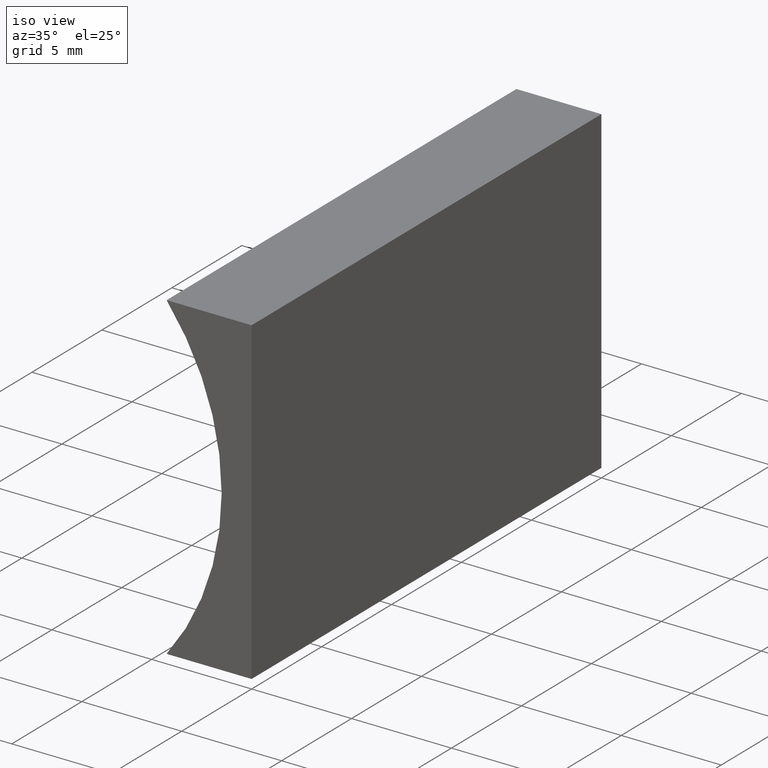
[diagram: clean part render]
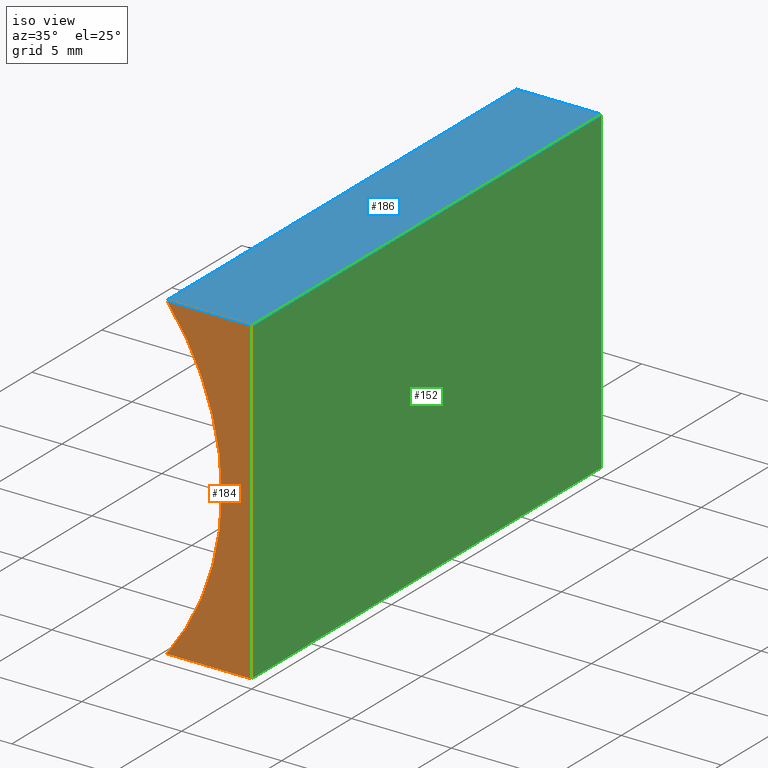
[diagram: same view with three faces highlighted in distinct colors, each labeled with its STEP entity id]
A machine part, iso view with three faces highlighted in distinct colors.
Their STEP definitions:

[orange] entity #184 — the highlighted planar face has unit normal (0, 1, 0).
#2 = CARTESIAN_POINT ( 'NONE',  ( -14.49999999999999800, 0.0000000000000000000, 8.000000000000003600 ) ) ;
#3 = VECTOR ( 'NONE', #71, 1000.000000000000000 ) ;
#4 = EDGE_CURVE ( 'NONE', #16, #123, #56, .T. ) ;
#7 = CARTESIAN_POINT ( 'NONE',  ( 9.797174393178825700E-016, 0.0000000000000000000, 16.00000000000000000 ) ) ;
#8 = ORIENTED_EDGE ( 'NONE', *, *, #90, .F. ) ;
#15 = FACE_OUTER_BOUND ( 'NONE', #159, .T. ) ;
#16 = VERTEX_POINT ( 'NONE', #134 ) ;
#17 = CARTESIAN_POINT ( 'NONE',  ( -4.253049234040399400, 0.0000000000000000000, 16.00000000000000000 ) ) ;
#26 = CARTESIAN_POINT ( 'NONE',  ( 0.0000000000000000000, 0.0000000000000000000, 0.0000000000000000000 ) ) ;
#30 = DIRECTION ( 'NONE',  ( 0.0000000000000000000, 1.000000000000000000, 0.0000000000000000000 ) ) ;
#32 = LINE ( 'NONE', #148, #67 ) ;
#42 = LINE ( 'NONE', #178, #3 ) ;
#44 = EDGE_CURVE ( 'NONE', #187, #204, #32, .T. ) ;
#56 = CIRCLE ( 'NONE', #202, 13.00000000000000200 ) ;
#61 = DIRECTION ( 'NONE',  ( -0.0000000000000000000, -1.000000000000000000, -0.0000000000000000000 ) ) ;
#67 = VECTOR ( 'NONE', #116, 1000.000000000000000 ) ;
#70 = CARTESIAN_POINT ( 'NONE',  ( -14.49999999999999800, 0.0000000000000000000, 8.000000000000003600 ) ) ;
#71 = DIRECTION ( 'NONE',  ( -1.000000000000000000, 0.0000000000000000000, 0.0000000000000000000 ) ) ;
#74 = ORIENTED_EDGE ( 'NONE', *, *, #80, .F. ) ;
#78 = AXIS2_PLACEMENT_3D ( 'NONE', #70, #30, #119 ) ;
#80 = EDGE_CURVE ( 'NONE', #123, #187, #147, .T. ) ;
#81 = ORIENTED_EDGE ( 'NONE', *, *, #4, .F. ) ;
#90 = EDGE_CURVE ( 'NONE', #204, #16, #42, .T. ) ;
#116 = DIRECTION ( 'NONE',  ( -6.123233995736766000E-017, -0.0000000000000000000, -1.000000000000000000 ) ) ;
#117 = VECTOR ( 'NONE', #174, 1000.000000000000000 ) ;
#119 = DIRECTION ( 'NONE',  ( 0.0000000000000000000, -0.0000000000000000000, 1.000000000000000000 ) ) ;
#123 = VERTEX_POINT ( 'NONE', #17 ) ;
#125 = DIRECTION ( 'NONE',  ( 0.0000000000000000000, 0.0000000000000000000, 1.000000000000000000 ) ) ;
#134 = CARTESIAN_POINT ( 'NONE',  ( -4.253049234040400300, 0.0000000000000000000, 1.734723475976807100E-015 ) ) ;
#147 = LINE ( 'NONE', #181, #117 ) ;
#148 = CARTESIAN_POINT ( 'NONE',  ( 0.0000000000000000000, 0.0000000000000000000, 0.0000000000000000000 ) ) ;
#154 = PLANE ( 'NONE',  #78 ) ;
#159 = EDGE_LOOP ( 'NONE', ( #8, #188, #74, #81 ) ) ;
#174 = DIRECTION ( 'NONE',  ( 1.000000000000000000, -0.0000000000000000000, -0.0000000000000000000 ) ) ;
#178 = CARTESIAN_POINT ( 'NONE',  ( 0.0000000000000000000, 0.0000000000000000000, 0.0000000000000000000 ) ) ;
#181 = CARTESIAN_POINT ( 'NONE',  ( 9.797174393178825700E-016, 0.0000000000000000000, 16.00000000000000000 ) ) ;
#184 = ADVANCED_FACE ( 'NONE', ( #15 ), #154, .F. ) ;
#187 = VERTEX_POINT ( 'NONE', #7 ) ;
#188 = ORIENTED_EDGE ( 'NONE', *, *, #44, .F. ) ;
#202 = AXIS2_PLACEMENT_3D ( 'NONE', #2, #61, #125 ) ;
#204 = VERTEX_POINT ( 'NONE', #26 ) ;

[blue] entity #186 — the highlighted planar face has unit normal (0, 0, -1).
#7 = CARTESIAN_POINT ( 'NONE',  ( 9.797174393178825700E-016, 0.0000000000000000000, 16.00000000000000000 ) ) ;
#17 = CARTESIAN_POINT ( 'NONE',  ( -4.253049234040399400, 0.0000000000000000000, 16.00000000000000000 ) ) ;
#22 = VECTOR ( 'NONE', #91, 1000.000000000000000 ) ;
#25 = CARTESIAN_POINT ( 'NONE',  ( 9.797174393178825700E-016, 25.00000000000000000, 16.00000000000000000 ) ) ;
#27 = CARTESIAN_POINT ( 'NONE',  ( -4.253049234040399400, 25.00000000000000000, 16.00000000000000000 ) ) ;
#34 = ORIENTED_EDGE ( 'NONE', *, *, #122, .F. ) ;
#36 = VERTEX_POINT ( 'NONE', #88 ) ;
#45 = PLANE ( 'NONE',  #73 ) ;
#46 = EDGE_CURVE ( 'NONE', #155, #36, #108, .T. ) ;
#54 = CARTESIAN_POINT ( 'NONE',  ( 9.797174393178825700E-016, 25.00000000000000000, 16.00000000000000000 ) ) ;
#63 = EDGE_LOOP ( 'NONE', ( #77, #34, #86, #193 ) ) ;
#73 = AXIS2_PLACEMENT_3D ( 'NONE', #25, #149, #167 ) ;
#77 = ORIENTED_EDGE ( 'NONE', *, *, #80, .T. ) ;
#80 = EDGE_CURVE ( 'NONE', #123, #187, #147, .T. ) ;
#86 = ORIENTED_EDGE ( 'NONE', *, *, #46, .F. ) ;
#88 = CARTESIAN_POINT ( 'NONE',  ( 9.797174393178825700E-016, 25.00000000000000000, 16.00000000000000000 ) ) ;
#91 = DIRECTION ( 'NONE',  ( -0.0000000000000000000, -1.000000000000000000, -0.0000000000000000000 ) ) ;
#95 = VECTOR ( 'NONE', #110, 1000.000000000000000 ) ;
#99 = VECTOR ( 'NONE', #164, 1000.000000000000000 ) ;
#108 = LINE ( 'NONE', #160, #99 ) ;
#110 = DIRECTION ( 'NONE',  ( -0.0000000000000000000, -1.000000000000000000, -0.0000000000000000000 ) ) ;
#112 = FACE_OUTER_BOUND ( 'NONE', #63, .T. ) ;
#117 = VECTOR ( 'NONE', #174, 1000.000000000000000 ) ;
#122 = EDGE_CURVE ( 'NONE', #36, #187, #129, .T. ) ;
#123 = VERTEX_POINT ( 'NONE', #17 ) ;
#128 = CARTESIAN_POINT ( 'NONE',  ( -4.253049234040399400, 25.00000000000000000, 16.00000000000000000 ) ) ;
#129 = LINE ( 'NONE', #54, #95 ) ;
#143 = LINE ( 'NONE', #27, #22 ) ;
#147 = LINE ( 'NONE', #181, #117 ) ;
#149 = DIRECTION ( 'NONE',  ( 0.0000000000000000000, 0.0000000000000000000, -1.000000000000000000 ) ) ;
#155 = VERTEX_POINT ( 'NONE', #128 ) ;
#160 = CARTESIAN_POINT ( 'NONE',  ( 9.797174393178825700E-016, 25.00000000000000000, 16.00000000000000000 ) ) ;
#164 = DIRECTION ( 'NONE',  ( 1.000000000000000000, -0.0000000000000000000, -0.0000000000000000000 ) ) ;
#167 = DIRECTION ( 'NONE',  ( -1.000000000000000000, 0.0000000000000000000, -0.0000000000000000000 ) ) ;
#174 = DIRECTION ( 'NONE',  ( 1.000000000000000000, -0.0000000000000000000, -0.0000000000000000000 ) ) ;
#181 = CARTESIAN_POINT ( 'NONE',  ( 9.797174393178825700E-016, 0.0000000000000000000, 16.00000000000000000 ) ) ;
#182 = EDGE_CURVE ( 'NONE', #155, #123, #143, .T. ) ;
#186 = ADVANCED_FACE ( 'NONE', ( #112 ), #45, .F. ) ;
#187 = VERTEX_POINT ( 'NONE', #7 ) ;
#193 = ORIENTED_EDGE ( 'NONE', *, *, #182, .T. ) ;

[green] entity #152 — the highlighted planar face has unit normal (-1, 0, 0).
#5 = EDGE_LOOP ( 'NONE', ( #121, #113, #126, #68 ) ) ;
#7 = CARTESIAN_POINT ( 'NONE',  ( 9.797174393178825700E-016, 0.0000000000000000000, 16.00000000000000000 ) ) ;
#9 = VERTEX_POINT ( 'NONE', #13 ) ;
#10 = VECTOR ( 'NONE', #101, 1000.000000000000000 ) ;
#13 = CARTESIAN_POINT ( 'NONE',  ( 0.0000000000000000000, 25.00000000000000000, 0.0000000000000000000 ) ) ;
#26 = CARTESIAN_POINT ( 'NONE',  ( 0.0000000000000000000, 0.0000000000000000000, 0.0000000000000000000 ) ) ;
#32 = LINE ( 'NONE', #148, #67 ) ;
#36 = VERTEX_POINT ( 'NONE', #88 ) ;
#44 = EDGE_CURVE ( 'NONE', #187, #204, #32, .T. ) ;
#53 = LINE ( 'NONE', #176, #150 ) ;
#54 = CARTESIAN_POINT ( 'NONE',  ( 9.797174393178825700E-016, 25.00000000000000000, 16.00000000000000000 ) ) ;
#66 = LINE ( 'NONE', #144, #10 ) ;
#67 = VECTOR ( 'NONE', #116, 1000.000000000000000 ) ;
#68 = ORIENTED_EDGE ( 'NONE', *, *, #122, .T. ) ;
#72 = AXIS2_PLACEMENT_3D ( 'NONE', #79, #120, #166 ) ;
#79 = CARTESIAN_POINT ( 'NONE',  ( 0.0000000000000000000, 25.00000000000000000, 0.0000000000000000000 ) ) ;
#88 = CARTESIAN_POINT ( 'NONE',  ( 9.797174393178825700E-016, 25.00000000000000000, 16.00000000000000000 ) ) ;
#95 = VECTOR ( 'NONE', #110, 1000.000000000000000 ) ;
#101 = DIRECTION ( 'NONE',  ( -6.123233995736766000E-017, -0.0000000000000000000, -1.000000000000000000 ) ) ;
#102 = FACE_OUTER_BOUND ( 'NONE', #5, .T. ) ;
#110 = DIRECTION ( 'NONE',  ( -0.0000000000000000000, -1.000000000000000000, -0.0000000000000000000 ) ) ;
#113 = ORIENTED_EDGE ( 'NONE', *, *, #157, .F. ) ;
#116 = DIRECTION ( 'NONE',  ( -6.123233995736766000E-017, -0.0000000000000000000, -1.000000000000000000 ) ) ;
#120 = DIRECTION ( 'NONE',  ( -1.000000000000000000, 0.0000000000000000000, 6.123233995736766000E-017 ) ) ;
#121 = ORIENTED_EDGE ( 'NONE', *, *, #44, .T. ) ;
#122 = EDGE_CURVE ( 'NONE', #36, #187, #129, .T. ) ;
#126 = ORIENTED_EDGE ( 'NONE', *, *, #171, .F. ) ;
#129 = LINE ( 'NONE', #54, #95 ) ;
#132 = DIRECTION ( 'NONE',  ( -0.0000000000000000000, -1.000000000000000000, -0.0000000000000000000 ) ) ;
#144 = CARTESIAN_POINT ( 'NONE',  ( 0.0000000000000000000, 25.00000000000000000, 0.0000000000000000000 ) ) ;
#148 = CARTESIAN_POINT ( 'NONE',  ( 0.0000000000000000000, 0.0000000000000000000, 0.0000000000000000000 ) ) ;
#150 = VECTOR ( 'NONE', #132, 1000.000000000000000 ) ;
#152 = ADVANCED_FACE ( 'NONE', ( #102 ), #158, .F. ) ;
#157 = EDGE_CURVE ( 'NONE', #9, #204, #53, .T. ) ;
#158 = PLANE ( 'NONE',  #72 ) ;
#166 = DIRECTION ( 'NONE',  ( 6.123233995736766000E-017, 0.0000000000000000000, 1.000000000000000000 ) ) ;
#171 = EDGE_CURVE ( 'NONE', #36, #9, #66, .T. ) ;
#176 = CARTESIAN_POINT ( 'NONE',  ( 0.0000000000000000000, 25.00000000000000000, 0.0000000000000000000 ) ) ;
#187 = VERTEX_POINT ( 'NONE', #7 ) ;
#204 = VERTEX_POINT ( 'NONE', #26 ) ;